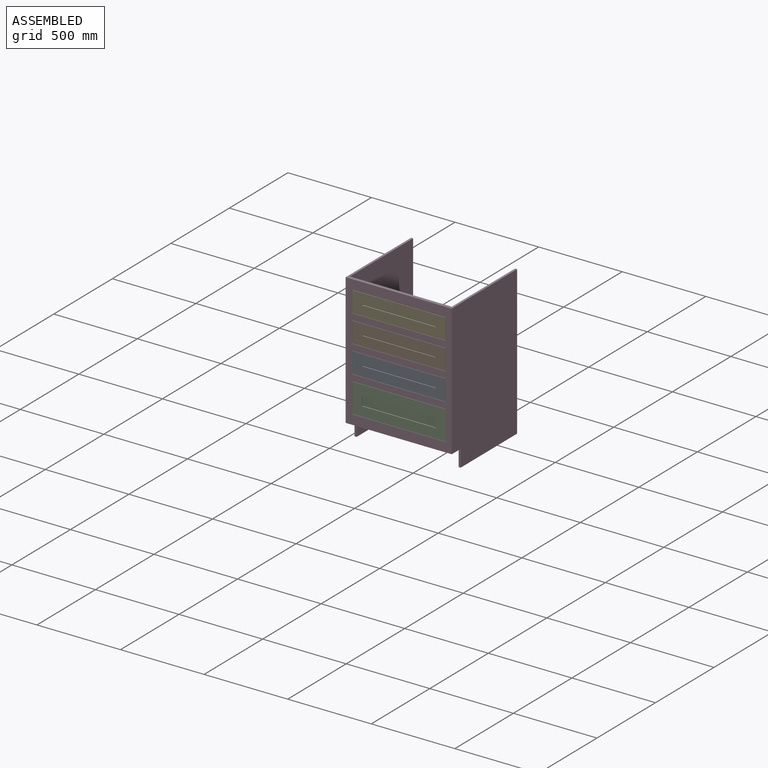
[diagram: assembled view]
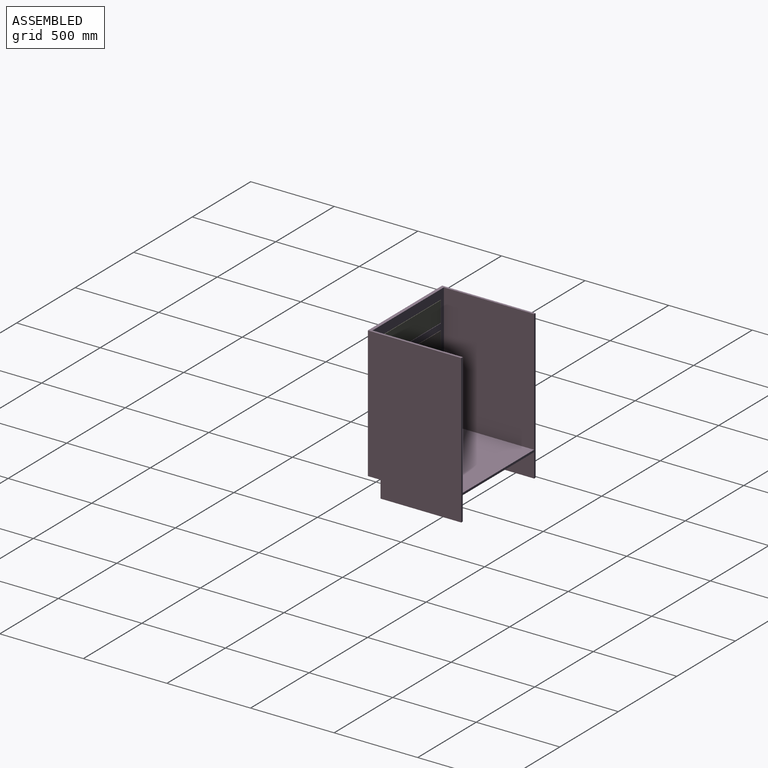
[diagram: assembled view, second angle]
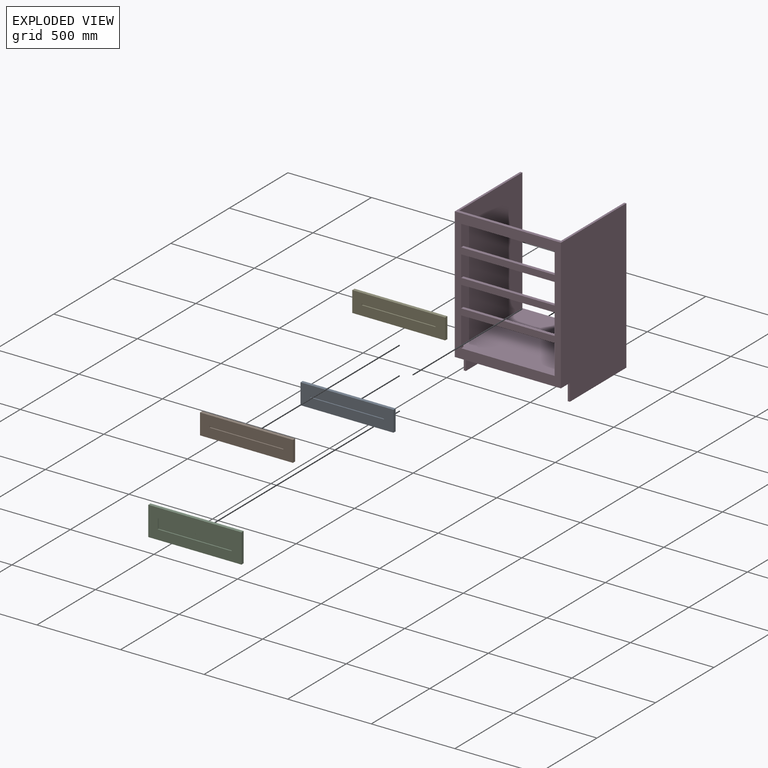
[diagram: exploded view]
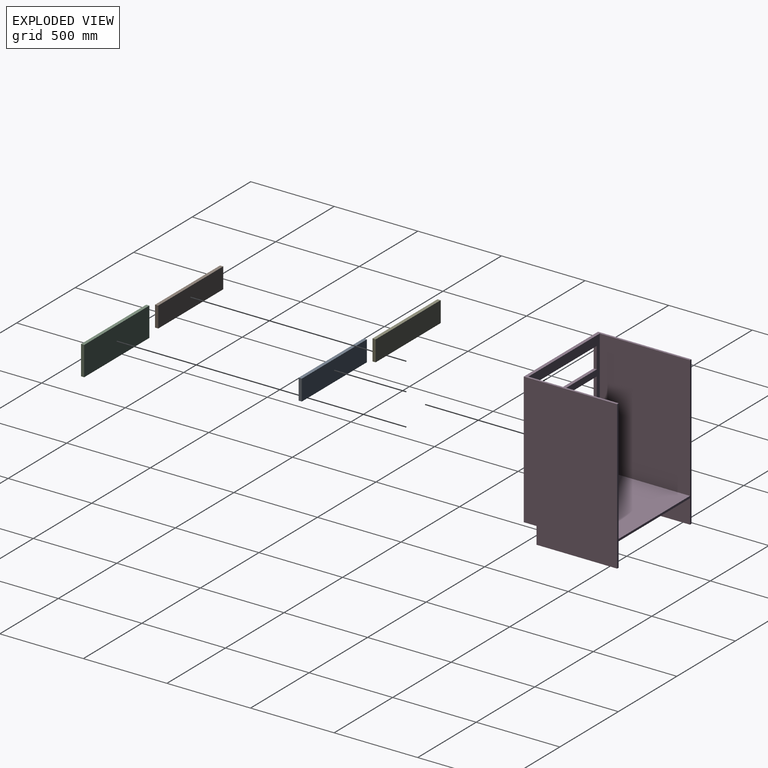
[diagram: exploded view, second angle]
ASSEMBLY  parts=5 mates=4
PART A: 11 faces, bbox 555.6x19.1x123.8 mm
  f0: plane 555.63x123.83mm, normal (0,-1,0), area 64596.6mm2, adj f1,f2,f3,f4,f6,f7,f8,f9
  f1: plane 555.63x19.05mm, normal (0,0,1), area 10584.7mm2, adj f0,f2,f4,f5
  f2: plane 123.83x19.05mm, normal (-1,0,0), area 2358.9mm2, adj f0,f1,f3,f5
  f3: plane 555.63x19.05mm, normal (0,0,-1), area 10584.7mm2, adj f0,f2,f4,f5
  f4: plane 123.83x19.05mm, normal (1,0,0), area 2358.9mm2, adj f0,f1,f3,f5
  f5: plane 555.63x123.83mm, normal (0,1,0), area 68800.3mm2, adj f1,f2,f3,f4
  f6: plane 441.33x6.35mm, normal (0,0,-1), area 2802.4mm2, adj f0,f7,f9,f10
  f7: plane 9.53x6.35mm, normal (1,0,0), area 60.5mm2, adj f0,f6,f8,f10
  f8: plane 441.33x6.35mm, normal (0,0,1), area 2802.4mm2, adj f0,f7,f9,f10
  f9: plane 9.53x6.35mm, normal (-1,0,0), area 60.5mm2, adj f0,f6,f8,f10
  f10: plane 441.33x9.53mm, normal (0,-1,0), area 4203.6mm2, adj f6,f7,f8,f9
PART B: same geometry as A
PART C: 11 faces, bbox 557.2x19.1x174.6 mm
  f0: plane 557.21x174.63mm, normal (0,-1,0), area 70680.3mm2, adj f1,f2,f3,f4,f6,f7,f8,f9
  f1: plane 557.21x19.05mm, normal (0,0,1), area 10614.9mm2, adj f0,f2,f4,f5
  f2: plane 174.63x19.05mm, normal (-1,0,0), area 3326.6mm2, adj f0,f1,f3,f5
  f3: plane 557.21x19.05mm, normal (0,0,-1), area 10614.9mm2, adj f0,f2,f4,f5
  f4: plane 174.63x19.05mm, normal (1,0,0), area 3326.6mm2, adj f0,f1,f3,f5
  f5: plane 557.21x174.63mm, normal (0,1,0), area 97303.2mm2, adj f1,f2,f3,f4
  f6: plane 441.33x6.35mm, normal (0,0,-1), area 2802.4mm2, adj f0,f7,f9,f10
  f7: plane 60.33x6.35mm, normal (1,0,0), area 383.1mm2, adj f0,f6,f8,f10
  f8: plane 441.33x6.35mm, normal (0,0,1), area 2802.4mm2, adj f0,f7,f9,f10
  f9: plane 60.33x6.35mm, normal (-1,0,0), area 383.1mm2, adj f0,f6,f8,f10
  f10: plane 441.33x60.33mm, normal (0,-1,0), area 26622.9mm2, adj f6,f7,f8,f9
PART D: 34 faces, bbox 635x558.8x889 mm
  f0: plane 889x558.8mm, normal (-1,0,0), area 489031.3mm2, adj f9,f10,f11,f25,f31,f32
  f1: plane 539.75x142.88mm, normal (-1,0,0), area 71310.3mm2, adj f3,f11,f25,f29,f30,f33
  f2: plane 539.75x142.88mm, normal (1,0,0), area 71310.3mm2, adj f3,f11,f25,f30,f31,f32
  f3: plane 609.6x41.28mm, normal (0,1,0), area 25161.2mm2, adj f1,f2,f11,f30
  f4: plane 733.43x609.6mm, normal (0,1,0), area 134838.4mm2, adj f5,f6,f7,f8,f10,f13,f14,f15
  f5: plane 558.8x19.05mm, normal (0,0,-1), area 10645.1mm2, adj f4,f9,f22,f23
  f6: plane 558.8x19.05mm, normal (0,0,-1), area 10645.1mm2, adj f4,f9,f19,f20
  f7: plane 558.8x19.05mm, normal (0,0,-1), area 10645.1mm2, adj f4,f9,f16,f17
  f8: plane 558.8x19.05mm, normal (0,0,-1), area 10645.1mm2, adj f4,f9,f13,f14
  f9: plane 787.4x635mm, normal (0,-1,0), area 187741.6mm2, adj f0,f5,f6,f7,f8,f10,f11,f12
  f10: plane 635x558.8mm, normal (0,0,1), area 25806.4mm2, adj f0,f4,f9,f12,f25,f26,f28
  f11: plane 635x76.2mm, normal (0,0,-1), area 13548.4mm2, adj f0,f1,f2,f3,f9,f12,f32,f33
  f12: plane 889x558.8mm, normal (1,0,0), area 489031.3mm2, adj f9,f10,f11,f25,f29,f33
  f13: plane 177.8x19.05mm, normal (1,0,0), area 3387.1mm2, adj f4,f8,f9,f15
  f14: plane 177.8x19.05mm, normal (-1,0,0), area 3387.1mm2, adj f4,f8,f9,f15
  f15: plane 558.8x19.05mm, normal (0,0,1), area 10645.1mm2, adj f4,f9,f13,f14
  f16: plane 127x19.05mm, normal (1,0,0), area 2419.4mm2, adj f4,f7,f9,f18
  f17: plane 127x19.05mm, normal (-1,0,0), area 2419.4mm2, adj f4,f7,f9,f18
  f18: plane 558.8x19.05mm, normal (0,0,1), area 10645.1mm2, adj f4,f9,f16,f17
  f19: plane 127x19.05mm, normal (1,0,0), area 2419.4mm2, adj f4,f6,f9,f21
  f20: plane 127x19.05mm, normal (-1,0,0), area 2419.4mm2, adj f4,f6,f9,f21
  f21: plane 558.8x19.05mm, normal (0,0,1), area 10645.1mm2, adj f4,f9,f19,f20
  f22: plane 127x19.05mm, normal (1,0,0), area 2419.4mm2, adj f4,f5,f9,f24
  f23: plane 127x19.05mm, normal (-1,0,0), area 2419.4mm2, adj f4,f5,f9,f24
  f24: plane 558.8x19.05mm, normal (0,0,1), area 10645.1mm2, adj f4,f9,f22,f23
  f25: plane 889x635mm, normal (0,1,0), area 30322.5mm2, adj f0,f1,f2,f10,f12,f26,f27,f28
  f26: plane 733.43x539.75mm, normal (1,0,0), area 395866.1mm2, adj f4,f10,f25,f27
  f27: plane 609.6x539.75mm, normal (0,0,1), area 329031.6mm2, adj f4,f25,f26,f28
  f28: plane 733.43x539.75mm, normal (-1,0,0), area 395866.1mm2, adj f4,f10,f25,f27
  f29: plane 482.6x12.7mm, normal (0,0,-1), area 6129mm2, adj f1,f12,f25,f33
  f30: plane 609.6x539.75mm, normal (0,0,-1), area 329031.6mm2, adj f1,f2,f3,f25
  f31: plane 482.6x12.7mm, normal (0,0,-1), area 6129mm2, adj f0,f2,f25,f32
  f32: plane 101.6x12.7mm, normal (0,-1,0), area 1290.3mm2, adj f0,f2,f11,f31
  f33: plane 101.6x12.7mm, normal (0,-1,0), area 1290.3mm2, adj f1,f11,f12,f29
PART E: same geometry as A
PLACE A t=(-2268.44,634.78,-553.8)mm
PLACE B t=(-2268.44,634.78,-388.7)mm
PLACE C t=(-2268.44,634.78,-223.6)mm
PLACE D t=(-2268.44,634.78,-223.6)mm fixed
PLACE E t=(-2268.44,634.78,-223.6)mm
MATE fastened D.f9 <-> A.f0  axis (0,-1,0) through (81.06,75.98,278.05)mm
MATE fastened D.f9 <-> E.f0  axis (0,-1,0) through (81.06,75.98,608.25)mm
MATE fastened D.f9 <-> B.f0  axis (0,-1,0) through (81.06,75.98,443.15)mm
MATE fastened D.f9 <-> C.f0  axis (0,-1,0) through (81.06,75.98,112.95)mm
